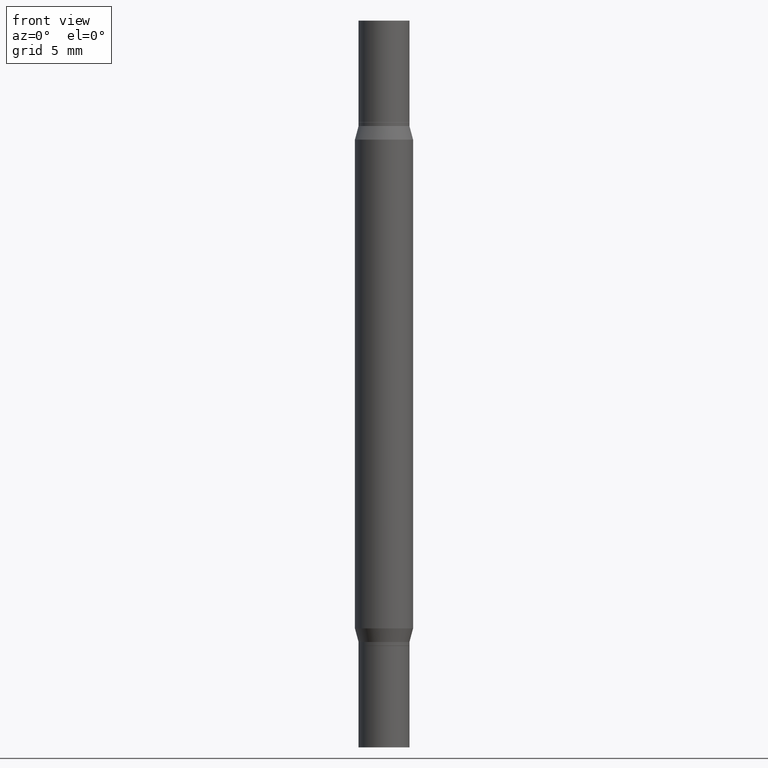
[diagram: clean part render]
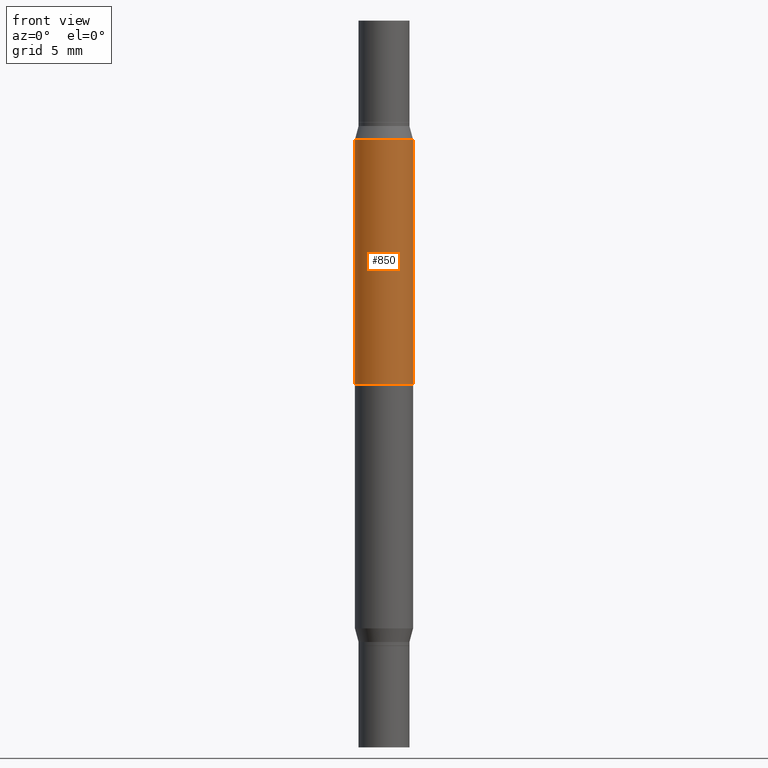
[diagram: same view with one face highlighted and labeled with its STEP entity id]
A machine part, front view. The second image highlights one B-rep face of the part: STEP entity #850.
In plain terms, the highlighted cylindrical surface (edge-blend (fillet) strip) has radius 2.0002 mm, axis along (-0, -0, -1).
Its self-contained STEP definition (entity closure, byte-faithful):
#44 = DIRECTION ( 'NONE',  ( 1.000000000000000000, -6.982962677686261977E-15, 0.000000000000000000 ) ) ;
#56 = LINE ( 'NONE', #492, #436 ) ;
#81 = VERTEX_POINT ( 'NONE', #408 ) ;
#107 = CIRCLE ( 'NONE', #592, 0.07875000000000000056 ) ;
#121 = VERTEX_POINT ( 'NONE', #389 ) ;
#167 = VERTEX_POINT ( 'NONE', #252 ) ;
#191 = DIRECTION ( 'NONE',  ( 1.000000000000000000, -6.982962677686268288E-15, 0.000000000000000000 ) ) ;
#247 = AXIS2_PLACEMENT_3D ( 'NONE', #341, #873, #802 ) ;
#252 = CARTESIAN_POINT ( 'NONE',  ( -0.07875000000000000056, -1.740632076205336930E-15, -0.9842499999999998472 ) ) ;
#266 = EDGE_LOOP ( 'NONE', ( #390, #868, #461, #874 ) ) ;
#302 = AXIS2_PLACEMENT_3D ( 'NONE', #621, #418, #44 ) ;
#318 = EDGE_CURVE ( 'NONE', #81, #167, #56, .T. ) ;
#326 = CYLINDRICAL_SURFACE ( 'NONE', #302, 0.07875000000000000056 ) ;
#341 = CARTESIAN_POINT ( 'NONE',  ( 2.406952672487720357E-29, -3.436490507756365459E-15, -0.9842499999999998472 ) ) ;
#352 = DIRECTION ( 'NONE',  ( -2.445468806185136877E-29, -3.491805094961123683E-15, -1.000000000000000000 ) ) ;
#389 = CARTESIAN_POINT ( 'NONE',  ( 0.07875000000000000056, -1.675210390171119696E-15, -0.3223607004545533949 ) ) ;
#390 = ORIENTED_EDGE ( 'NONE', *, *, #800, .F. ) ;
#408 = CARTESIAN_POINT ( 'NONE',  ( -0.07875000000000000056, -5.850378619788179676E-16, -0.3223607004545533949 ) ) ;
#418 = DIRECTION ( 'NONE',  ( -2.445468806185136597E-29, -3.491805094961124077E-15, -1.000000000000000000 ) ) ;
#430 = CARTESIAN_POINT ( 'NONE',  ( 0.07875000000000000056, -7.423207983339643972E-15, -1.968499999999999694 ) ) ;
#436 = VECTOR ( 'NONE', #352, 39.37007874015748143 ) ;
#451 = VECTOR ( 'NONE', #740, 39.37007874015748143 ) ;
#461 = ORIENTED_EDGE ( 'NONE', *, *, #913, .F. ) ;
#465 = CIRCLE ( 'NONE', #247, 0.07875000000000000056 ) ;
#477 = EDGE_CURVE ( 'NONE', #121, #772, #581, .T. ) ;
#481 = DIRECTION ( 'NONE',  ( 2.445468806185136597E-29, 3.491805094961124077E-15, 1.000000000000000000 ) ) ;
#492 = CARTESIAN_POINT ( 'NONE',  ( -0.07875000000000000056, -6.333035455147343525E-15, -1.968499999999999694 ) ) ;
#537 = CARTESIAN_POINT ( 'NONE',  ( 0.07875000000000000056, -2.830804604397638560E-15, -0.9842499999999998472 ) ) ;
#581 = LINE ( 'NONE', #430, #451 ) ;
#592 = AXIS2_PLACEMENT_3D ( 'NONE', #861, #481, #191 ) ;
#621 = CARTESIAN_POINT ( 'NONE',  ( 0.000000000000000000, -6.873299672471851415E-15, -1.968499999999999694 ) ) ;
#740 = DIRECTION ( 'NONE',  ( -2.445468806185136877E-29, -3.491805094961123683E-15, -1.000000000000000000 ) ) ;
#772 = VERTEX_POINT ( 'NONE', #537 ) ;
#800 = EDGE_CURVE ( 'NONE', #81, #121, #107, .T. ) ;
#802 = DIRECTION ( 'NONE',  ( 0.000000000000000000, 1.000000000000000000, -3.469013325287953293E-15 ) ) ;
#850 = ADVANCED_FACE ( 'NONE', ( #949 ), #326, .T. ) ;
#861 = CARTESIAN_POINT ( 'NONE',  ( 4.025582307673839975E-29, -1.125302079303325561E-15, -0.3223607004545533949 ) ) ;
#868 = ORIENTED_EDGE ( 'NONE', *, *, #318, .T. ) ;
#873 = DIRECTION ( 'NONE',  ( -0.000000000000000000, -3.491643216902134830E-15, -1.000000000000000000 ) ) ;
#874 = ORIENTED_EDGE ( 'NONE', *, *, #477, .F. ) ;
#913 = EDGE_CURVE ( 'NONE', #772, #167, #465, .T. ) ;
#949 = FACE_OUTER_BOUND ( 'NONE', #266, .T. ) ;